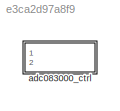
MODEL slx_e3ca2d97a8f9
KIND model
CONFIG AbsTol = auto
CONFIG EnableMultiTasking = off
CONFIG FixedStep = auto
CONFIG MaxStep = auto
CONFIG MinStep = auto
CONFIG RelTol = 1e-3
CONFIG SampleTimeConstraint = Unconstrained
CONFIG Solver = VariableStepAuto
CONFIG SolverName = VariableStepAuto
CONFIG StartTime = 0.0
CONFIG StopTime = 10.0
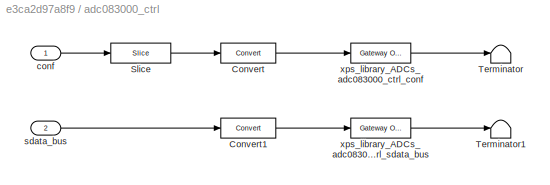
BLOCK [SubSystem] adc083000_ctrl
  Ports = [2]
  RequestExecContextInheritance = off
  Tag = xps:adc083000_ctrl
  Variant = off
BLOCK [Reference] adc083000_ctrl/Convert  REF=xbsIndex_r4/Convert
  Ports = [1, 1]
  SourceBlock = xbsIndex_r4/Convert
  SourceType = Xilinx Type Converter Block
BLOCK [Reference] adc083000_ctrl/Convert1  REF=xbsIndex_r4/Convert
  Ports = [1, 1]
  SourceBlock = xbsIndex_r4/Convert
  SourceType = Xilinx Type Converter Block
BLOCK [Reference] adc083000_ctrl/Slice  REF=xbsIndex_r4/Slice
  Ports = [1, 1]
  SourceBlock = xbsIndex_r4/Slice
  SourceType = Xilinx Bit Slice Extractor Block
BLOCK [Terminator] adc083000_ctrl/Terminator
BLOCK [Terminator] adc083000_ctrl/Terminator1
BLOCK [Inport] adc083000_ctrl/conf
  IconDisplay = Port number
BLOCK [Inport] adc083000_ctrl/sdata_bus
  IconDisplay = Port number
  Port = 2
BLOCK [Reference] adc083000_ctrl/xps_library_ADCs_adc083000_ctrl_conf  REF=xbsIndex_r4/Gateway Out
  Ports = [1, 1]
  SourceBlock = xbsIndex_r4/Gateway Out
  SourceType = Xilinx Gateway Out Block
BLOCK [Reference] adc083000_ctrl/xps_library_ADCs_adc083000_ctrl_sdata_bus  REF=xbsIndex_r4/Gateway Out
  Ports = [1, 1]
  SourceBlock = xbsIndex_r4/Gateway Out
  SourceType = Xilinx Gateway Out Block
LINE adc083000_ctrl/Convert1:1 -> adc083000_ctrl/xps_library_ADCs_adc083000_ctrl_sdata_bus:1
LINE adc083000_ctrl/Convert:1 -> adc083000_ctrl/xps_library_ADCs_adc083000_ctrl_conf:1
LINE adc083000_ctrl/Slice:1 -> adc083000_ctrl/Convert:1
LINE adc083000_ctrl/conf:1 -> adc083000_ctrl/Slice:1
LINE adc083000_ctrl/sdata_bus:1 -> adc083000_ctrl/Convert1:1
LINE adc083000_ctrl/xps_library_ADCs_adc083000_ctrl_conf:1 -> adc083000_ctrl/Terminator:1
LINE adc083000_ctrl/xps_library_ADCs_adc083000_ctrl_sdata_bus:1 -> adc083000_ctrl/Terminator1:1
